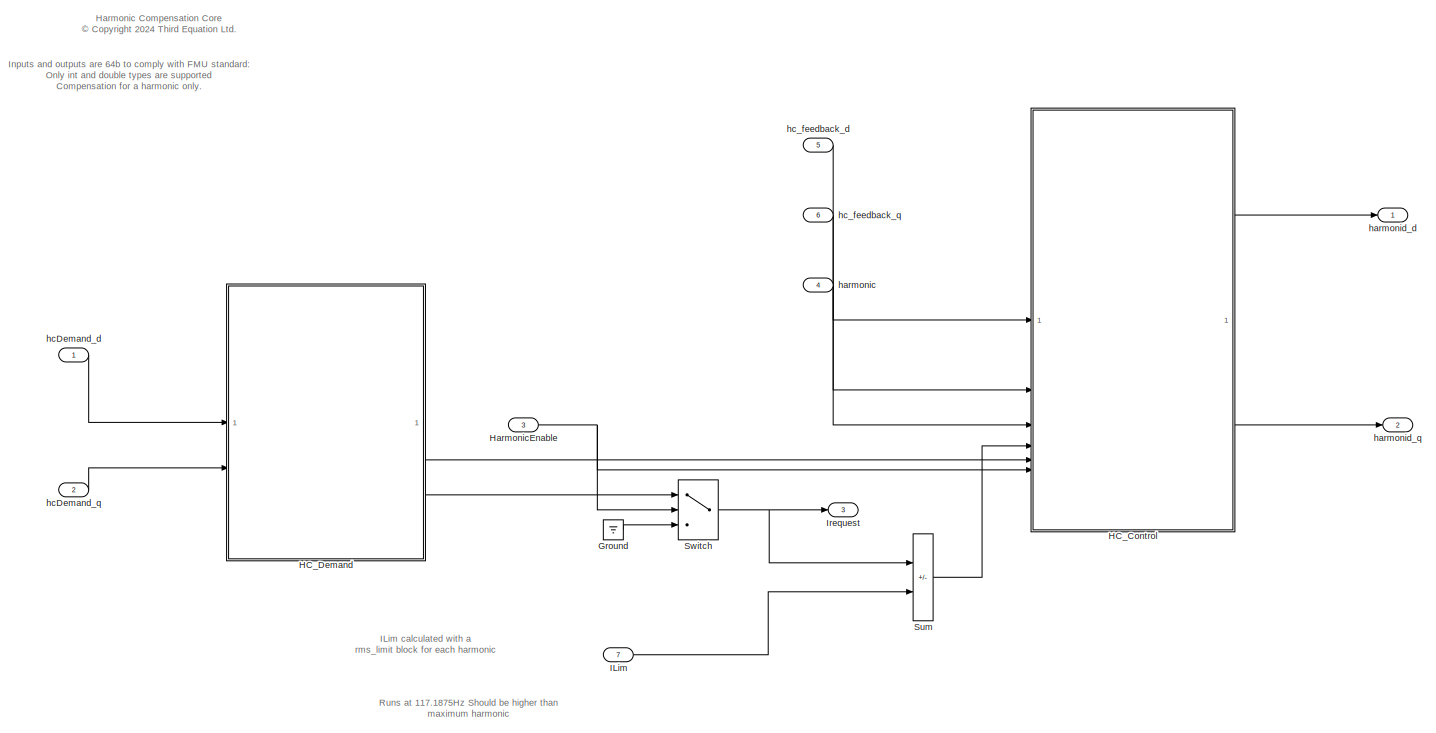
[diagram: root canvas - part 1/2, most of the canvas]
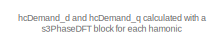
[diagram: root canvas - part 2/2, middle left region]
MODEL slx_1c04b1c57059
KIND model
BLOCK [Ground] Ground
BLOCK [ModelReference] HC_Control
  ModelNameDialog = HC_core_control.slx
  ModelReferenceVersion = 1.59
  PortSchema = {"entries":[{"content":{"sides":[{"content":{"connectorIds":["In1","In2","In3","In5","In6","In4"]},"type":"ConnectorPlacement.EquallySpacedRectSide","uuid":"85748541-43ee-4295-94aa-9804c24b54a1"},{"content":{"connectorIds":["Out1","Out2"],"side":"RIGHT"},"type":"ConnectorPlacement.EquallySpacedRectSide","uuid":"50992b9a-360f-4aff-aca3-059ad107a301"},{"content":{"side":"TOP"},"type":"ConnectorPlace...<+259ch>
BLOCK [ModelReference] HC_Demand
  ModelNameDialog = HC_core_demand.slx
  ModelReferenceVersion = 1.54
BLOCK [Inport] HarmonicEnable
  OutDataTypeStr = boolean
  Port = 3
  PortDimensions = 1
BLOCK [Inport] ILim
  OutDataTypeStr = single
  Port = 7
  PortDimensions = 3
BLOCK [Outport] Irequest
  OutDataTypeStr = single
  Port = 3
  PortDimensions = 3
BLOCK [Sum] Sum
  IconShape = rectangular
  Inputs = +-
BLOCK [Switch] Switch
  Criteria = u2 ~= 0
  InputSameDT = off
  OutDataTypeStr = Inherit: Inherit via back propagation
  SaturateOnIntegerOverflow = off
BLOCK [Inport] harmonic
  OutDataTypeStr = single
  Port = 4
  PortDimensions = 1
BLOCK [Outport] harmonid_d
  OutDataTypeStr = single
  PortDimensions = 3
BLOCK [Outport] harmonid_q
  OutDataTypeStr = single
  Port = 2
  PortDimensions = 3
BLOCK [Inport] hcDemand_d
  OutDataTypeStr = single
  PortDimensions = 3
BLOCK [Inport] hcDemand_q
  OutDataTypeStr = single
  Port = 2
  PortDimensions = 3
BLOCK [Inport] hc_feedback_d
  OutDataTypeStr = single
  Port = 5
  PortDimensions = 3
BLOCK [Inport] hc_feedback_q
  OutDataTypeStr = single
  Port = 6
  PortDimensions = 3
ANNOTATION (root): Harmonic Compensation Core <copyright redacted>
ANNOTATION (root): Inputs and outputs are 64b to comply with FMU standard: Only int and double types are supported Compensation for a harmonic only.
ANNOTATION (root): Runs at 117.1875Hz Should be higher than maximum harmonic
ANNOTATION (root): ILim calculated with a rms_limit block for each harmonic
ANNOTATION (root): hcDemand_d and hcDemand_q calculated with a s3PhaseDFT block for each hamonic
LINE Ground:1 -> Switch:3
LINE HC_Control:1 -> harmonid_d:1
LINE HC_Control:2 -> harmonid_q:1
LINE HC_Demand:1 -> HC_Control:5
LINE HC_Demand:2 -> Switch:1
NET HarmonicEnable:1 -> HC_Control:6, Switch:2
LINE ILim:1 -> Sum:2
LINE Sum:1 -> HC_Control:4
NET Switch:1 -> Irequest:1, Sum:1
LINE harmonic:1 -> HC_Control:3
LINE hcDemand_d:1 -> HC_Demand:1
LINE hcDemand_q:1 -> HC_Demand:2
LINE hc_feedback_d:1 -> HC_Control:1
LINE hc_feedback_q:1 -> HC_Control:2
note: NET lines group one-source signal fan-out (src -> all destinations, sorted); 1:1 wires keep LINE
